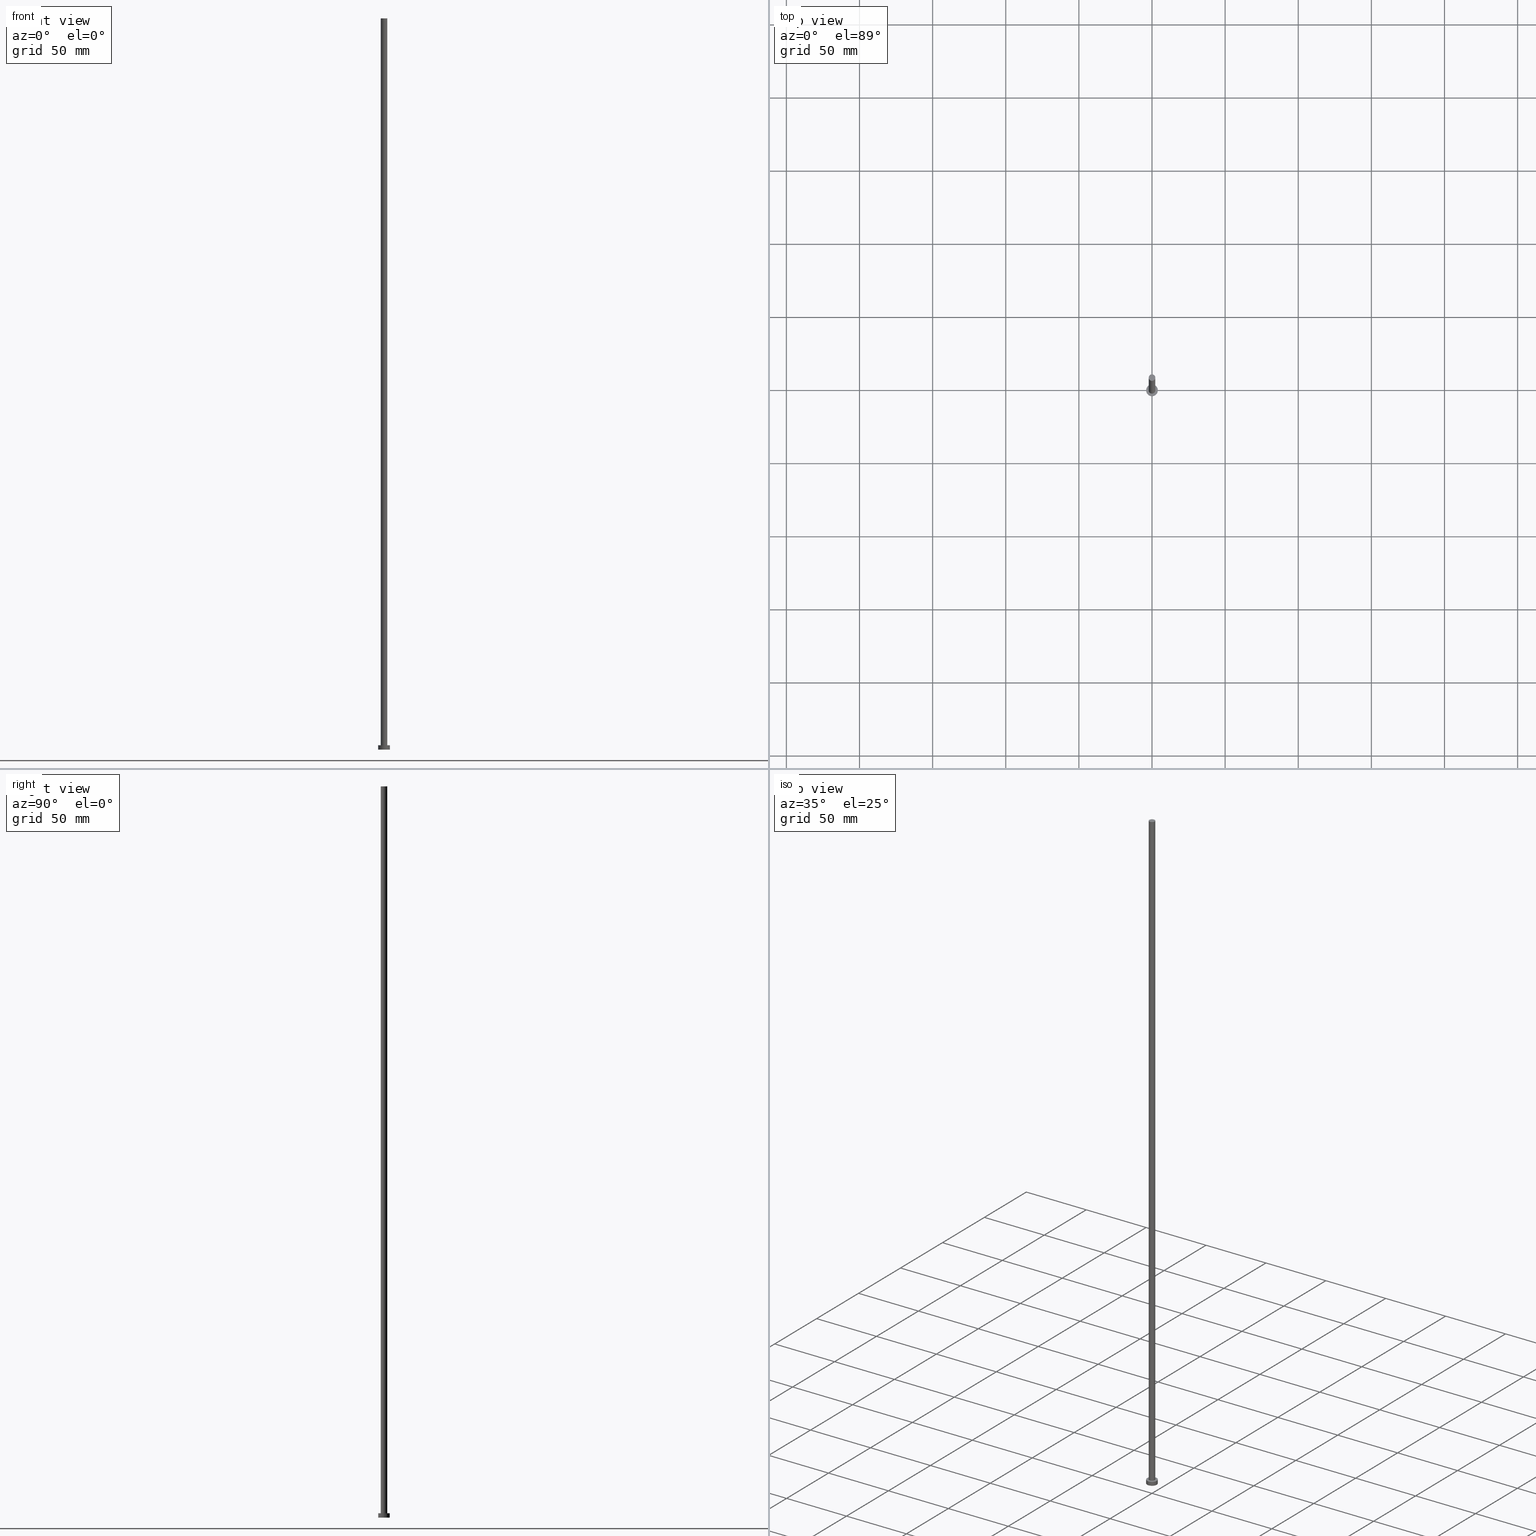
[diagram: canonical four-view strip — front | top / right | iso, engineering-drawing reading convention]
A machine part, canonical four-view strip (front | top / right | iso — engineering-drawing reading convention). The complete STEP part file that produces these views, byte-faithful:
ISO-10303-21;
HEADER;
FILE_DESCRIPTION (( 'STEP AP203' ),
    '1' );
FILE_NAME ('5251.STEP',
    '2023-02-12T11:52:20',
    ( '' ),
    ( '' ),
    'SwSTEP 2.0',
    'SolidWorks 2019',
    '' );
FILE_SCHEMA (( 'CONFIG_CONTROL_DESIGN' ));
ENDSEC;

DATA;
#1 = CARTESIAN_POINT ( 'NONE',  ( 0.000000000000000000, 0.000000000000000000, 3.000000000000000000 ) ) ;
#2 = ORIENTED_EDGE ( 'NONE', *, *, #45, .T. ) ;
#3 = ADVANCED_FACE ( 'NONE', ( #69, #70 ), #147, .T. ) ;
#4 = MECHANICAL_CONTEXT ( 'NONE', #82, 'mechanical' ) ;
#5 = LINE ( 'NONE', #236, #226 ) ;
#6 = CC_DESIGN_PERSON_AND_ORGANIZATION_ASSIGNMENT ( #89, #107, ( #231 ) ) ;
#7 = ORIENTED_EDGE ( 'NONE', *, *, #157, .F. ) ;
#8 = CARTESIAN_POINT ( 'NONE',  ( 0.000000000000000000, 0.000000000000000000, 500.0000000000000000 ) ) ;
#9 = VERTEX_POINT ( 'NONE', #183 ) ;
#10 = CC_DESIGN_SECURITY_CLASSIFICATION ( #229, ( #164 ) ) ;
#11 = DATE_AND_TIME ( #85, #214 ) ;
#12 = APPROVAL_ROLE ( '' ) ;
#13 = CC_DESIGN_PERSON_AND_ORGANIZATION_ASSIGNMENT ( #103, #203, ( #164 ) ) ;
#14 = AXIS2_PLACEMENT_3D ( 'NONE', #192, #63, #22 ) ;
#15 = CARTESIAN_POINT ( 'NONE',  ( 0.000000000000000000, 0.000000000000000000, 0.000000000000000000 ) ) ;
#16 = AXIS2_PLACEMENT_3D ( 'NONE', #230, #93, #35 ) ;
#17 = FACE_OUTER_BOUND ( 'NONE', #193, .T. ) ;
#18 = AXIS2_PLACEMENT_3D ( 'NONE', #158, #199, #46 ) ;
#19 = LINE ( 'NONE', #171, #149 ) ;
#20 = ORIENTED_EDGE ( 'NONE', *, *, #116, .T. ) ;
#21 = EDGE_CURVE ( 'NONE', #9, #123, #114, .T. ) ;
#22 = DIRECTION ( 'NONE',  ( 1.000000000000000000, 0.000000000000000000, -0.000000000000000000 ) ) ;
#23 = ORIENTED_EDGE ( 'NONE', *, *, #169, .F. ) ;
#24 = APPROVAL_PERSON_ORGANIZATION ( #118, #120, #215 ) ;
#25 = CARTESIAN_POINT ( 'NONE',  ( 0.000000000000000000, 0.000000000000000000, 3.000000000000000000 ) ) ;
#26 = APPROVAL_DATE_TIME ( #245, #185 ) ;
#27 = COORDINATED_UNIVERSAL_TIME_OFFSET ( 1, 0, .AHEAD. ) ;
#28 = CIRCLE ( 'NONE', #210, 2.250000000000000000 ) ;
#29 = DATE_AND_TIME ( #247, #221 ) ;
#30 = ADVANCED_FACE ( 'NONE', ( #36 ), #133, .T. ) ;
#31 = CALENDAR_DATE ( 2023, 12, 2 ) ;
#32 = CARTESIAN_POINT ( 'NONE',  ( 4.000000000000000000, 4.898587196589412829E-16, 0.000000000000000000 ) ) ;
#33 = CARTESIAN_POINT ( 'NONE',  ( 0.000000000000000000, 0.000000000000000000, 0.000000000000000000 ) ) ;
#34 = CARTESIAN_POINT ( 'NONE',  ( 0.000000000000000000, 0.000000000000000000, 3.000000000000000000 ) ) ;
#35 = DIRECTION ( 'NONE',  ( 1.000000000000000000, 0.000000000000000000, 0.000000000000000000 ) ) ;
#36 = FACE_OUTER_BOUND ( 'NONE', #84, .T. ) ;
#37 = VERTEX_POINT ( 'NONE', #56 ) ;
#38 = PERSON_AND_ORGANIZATION_ROLE ( 'design_owner' ) ;
#39 = ADVANCED_FACE ( 'NONE', ( #112 ), #173, .T. ) ;
#40 = COORDINATED_UNIVERSAL_TIME_OFFSET ( 1, 0, .AHEAD. ) ;
#41 = ORIENTED_EDGE ( 'NONE', *, *, #104, .T. ) ;
#42 = ORIENTED_EDGE ( 'NONE', *, *, #21, .T. ) ;
#43 = DIRECTION ( 'NONE',  ( 0.000000000000000000, 0.000000000000000000, 1.000000000000000000 ) ) ;
#44 = LOCAL_TIME ( 12, 52, 20.00000000000000000, #27 ) ;
#45 = EDGE_CURVE ( 'NONE', #64, #37, #19, .T. ) ;
#46 = DIRECTION ( 'NONE',  ( 1.000000000000000000, 0.000000000000000000, 0.000000000000000000 ) ) ;
#47 = EDGE_LOOP ( 'NONE', ( #241, #20, #96, #156 ) ) ;
#48 = PERSON_AND_ORGANIZATION ( #68, #110 ) ;
#49 = SHAPE_DEFINITION_REPRESENTATION ( #162, #66 ) ;
#50 = CC_DESIGN_PERSON_AND_ORGANIZATION_ASSIGNMENT ( #137, #38, ( #197 ) ) ;
#51 = CALENDAR_DATE ( 2023, 12, 2 ) ;
#52 = CIRCLE ( 'NONE', #188, 2.250000000000000000 ) ;
#53 = PERSON_AND_ORGANIZATION ( #68, #110 ) ;
#54 = LOCAL_TIME ( 12, 52, 20.00000000000000000, #109 ) ;
#55 = DIRECTION ( 'NONE',  ( 0.000000000000000000, 0.000000000000000000, 1.000000000000000000 ) ) ;
#56 = CARTESIAN_POINT ( 'NONE',  ( -4.000000000000000000, 0.000000000000000000, 0.000000000000000000 ) ) ;
#57 = ORIENTED_EDGE ( 'NONE', *, *, #131, .F. ) ;
#58 = MANIFOLD_SOLID_BREP ( 'P�idat vysunut�m3', #77 ) ;
#59 = ADVANCED_FACE ( 'NONE', ( #17 ), #74, .F. ) ;
#60 = AXIS2_PLACEMENT_3D ( 'NONE', #160, #43, #102 ) ;
#61 = DIRECTION ( 'NONE',  ( 0.000000000000000000, 0.000000000000000000, 1.000000000000000000 ) ) ;
#62 =( GEOMETRIC_REPRESENTATION_CONTEXT ( 3 ) GLOBAL_UNCERTAINTY_ASSIGNED_CONTEXT ( ( #165 ) ) GLOBAL_UNIT_ASSIGNED_CONTEXT ( ( #239, #65, #243 ) ) REPRESENTATION_CONTEXT ( 'NONE', 'WORKASPACE' ) );
#63 = DIRECTION ( 'NONE',  ( 0.000000000000000000, 0.000000000000000000, 1.000000000000000000 ) ) ;
#64 = VERTEX_POINT ( 'NONE', #75 ) ;
#65 =( NAMED_UNIT ( * ) PLANE_ANGLE_UNIT ( ) SI_UNIT ( $, .RADIAN. ) );
#66 = ADVANCED_BREP_SHAPE_REPRESENTATION ( '5251', ( #58, #153 ), #62 ) ;
#67 = PERSON_AND_ORGANIZATION ( #68, #110 ) ;
#68 = PERSON ( 'NEUR�EN�', 'NEUR�EN�', 'NEUR�EN�', ('NEUR�EN�'), ('NEUR�EN�'), ('NEUR�EN�') ) ;
#69 = FACE_BOUND ( 'NONE', #155, .T. ) ;
#70 = FACE_OUTER_BOUND ( 'NONE', #198, .T. ) ;
#71 = EDGE_CURVE ( 'NONE', #37, #81, #249, .T. ) ;
#72 = VECTOR ( 'NONE', #115, 1000.000000000000000 ) ;
#73 = LINE ( 'NONE', #232, #184 ) ;
#74 = PLANE ( 'NONE',  #163 ) ;
#75 = CARTESIAN_POINT ( 'NONE',  ( -4.000000000000000000, 0.000000000000000000, 3.000000000000000000 ) ) ;
#76 = PRODUCT_RELATED_PRODUCT_CATEGORY ( 'detail', '', ( #197 ) ) ;
#77 = CLOSED_SHELL ( 'NONE', ( #39, #189, #140, #3, #59, #30, #251 ) ) ;
#78 = CARTESIAN_POINT ( 'NONE',  ( 0.000000000000000000, 0.000000000000000000, 500.0000000000000000 ) ) ;
#79 = AXIS2_PLACEMENT_3D ( 'NONE', #100, #121, #213 ) ;
#80 = CARTESIAN_POINT ( 'NONE',  ( 0.000000000000000000, 0.000000000000000000, 3.000000000000000000 ) ) ;
#81 = VERTEX_POINT ( 'NONE', #32 ) ;
#82 = APPLICATION_CONTEXT ( 'configuration controlled 3d designs of mechanical parts and assemblies' ) ;
#83 = CYLINDRICAL_SURFACE ( 'NONE', #79, 4.000000000000000000 ) ;
#84 = EDGE_LOOP ( 'NONE', ( #182, #23, #212, #42 ) ) ;
#85 = CALENDAR_DATE ( 2023, 12, 2 ) ;
#86 = FACE_OUTER_BOUND ( 'NONE', #223, .T. ) ;
#87 = CIRCLE ( 'NONE', #255, 4.000000000000000000 ) ;
#88 = APPROVAL_ROLE ( '' ) ;
#89 = PERSON_AND_ORGANIZATION ( #68, #110 ) ;
#90 = LOCAL_TIME ( 12, 52, 20.00000000000000000, #227 ) ;
#91 = CYLINDRICAL_SURFACE ( 'NONE', #98, 4.000000000000000000 ) ;
#92 = EDGE_CURVE ( 'NONE', #123, #9, #52, .T. ) ;
#93 = DIRECTION ( 'NONE',  ( 0.000000000000000000, 0.000000000000000000, 1.000000000000000000 ) ) ;
#94 = DIRECTION ( 'NONE',  ( -0.000000000000000000, -0.000000000000000000, -1.000000000000000000 ) ) ;
#95 = EDGE_CURVE ( 'NONE', #218, #81, #73, .T. ) ;
#96 = ORIENTED_EDGE ( 'NONE', *, *, #92, .T. ) ;
#97 = APPLICATION_PROTOCOL_DEFINITION ( 'international standard', 'config_control_design', 1994, #201 ) ;
#98 = AXIS2_PLACEMENT_3D ( 'NONE', #25, #176, #142 ) ;
#99 = APPROVAL ( #181, 'NEUR�EN�' ) ;
#100 = CARTESIAN_POINT ( 'NONE',  ( 0.000000000000000000, 0.000000000000000000, 3.000000000000000000 ) ) ;
#101 = VERTEX_POINT ( 'NONE', #154 ) ;
#102 = DIRECTION ( 'NONE',  ( 1.000000000000000000, 0.000000000000000000, 0.000000000000000000 ) ) ;
#103 = PERSON_AND_ORGANIZATION ( #68, #110 ) ;
#104 = EDGE_CURVE ( 'NONE', #218, #64, #87, .T. ) ;
#105 = DATE_TIME_ROLE ( 'creation_date' ) ;
#106 = CIRCLE ( 'NONE', #18, 2.250000000000000000 ) ;
#107 = PERSON_AND_ORGANIZATION_ROLE ( 'creator' ) ;
#108 = AXIS2_PLACEMENT_3D ( 'NONE', #254, #252, #187 ) ;
#109 = COORDINATED_UNIVERSAL_TIME_OFFSET ( 1, 0, .AHEAD. ) ;
#110 = ORGANIZATION ( 'NEUR�EN�', 'NEUR�EN�', '' ) ;
#111 = FACE_OUTER_BOUND ( 'NONE', #159, .T. ) ;
#112 = FACE_OUTER_BOUND ( 'NONE', #47, .T. ) ;
#113 = DIRECTION ( 'NONE',  ( 0.000000000000000000, 0.000000000000000000, 1.000000000000000000 ) ) ;
#114 = CIRCLE ( 'NONE', #16, 2.250000000000000000 ) ;
#115 = DIRECTION ( 'NONE',  ( -0.000000000000000000, -0.000000000000000000, -1.000000000000000000 ) ) ;
#116 = EDGE_CURVE ( 'NONE', #237, #123, #186, .T. ) ;
#117 = CC_DESIGN_APPROVAL ( #185, ( #164 ) ) ;
#118 = PERSON_AND_ORGANIZATION ( #68, #110 ) ;
#119 = ORIENTED_EDGE ( 'NONE', *, *, #45, .F. ) ;
#120 = APPROVAL ( #191, 'NEUR�EN�' ) ;
#121 = DIRECTION ( 'NONE',  ( -0.000000000000000000, -0.000000000000000000, -1.000000000000000000 ) ) ;
#122 = DIRECTION ( 'NONE',  ( 1.000000000000000000, 0.000000000000000000, 0.000000000000000000 ) ) ;
#123 = VERTEX_POINT ( 'NONE', #150 ) ;
#124 = AXIS2_PLACEMENT_3D ( 'NONE', #33, #61, #135 ) ;
#125 = ORIENTED_EDGE ( 'NONE', *, *, #104, .F. ) ;
#126 = APPROVAL_DATE_TIME ( #11, #120 ) ;
#127 = CC_DESIGN_DATE_AND_TIME_ASSIGNMENT ( #148, #224, ( #229 ) ) ;
#128 = APPROVAL_STATUS ( 'not_yet_approved' ) ;
#129 = CC_DESIGN_APPROVAL ( #99, ( #229 ) ) ;
#130 = DIRECTION ( 'NONE',  ( 0.000000000000000000, 0.000000000000000000, 1.000000000000000000 ) ) ;
#131 = EDGE_CURVE ( 'NONE', #81, #37, #144, .T. ) ;
#132 = AXIS2_PLACEMENT_3D ( 'NONE', #78, #253, #151 ) ;
#133 = CYLINDRICAL_SURFACE ( 'NONE', #108, 2.250000000000000000 ) ;
#134 = APPROVAL_PERSON_ORGANIZATION ( #166, #99, #12 ) ;
#135 = DIRECTION ( 'NONE',  ( 1.000000000000000000, 0.000000000000000000, 0.000000000000000000 ) ) ;
#136 = DIRECTION ( 'NONE',  ( 1.000000000000000000, 0.000000000000000000, -0.000000000000000000 ) ) ;
#137 = PERSON_AND_ORGANIZATION ( #68, #110 ) ;
#138 = ORIENTED_EDGE ( 'NONE', *, *, #71, .T. ) ;
#139 = DIRECTION ( 'NONE',  ( 0.000000000000000000, 0.000000000000000000, 1.000000000000000000 ) ) ;
#140 = ADVANCED_FACE ( 'NONE', ( #111 ), #91, .T. ) ;
#141 = ORIENTED_EDGE ( 'NONE', *, *, #225, .T. ) ;
#142 = DIRECTION ( 'NONE',  ( -1.000000000000000000, 0.000000000000000000, 0.000000000000000000 ) ) ;
#143 = PERSON_AND_ORGANIZATION_ROLE ( 'classification_officer' ) ;
#144 = CIRCLE ( 'NONE', #206, 4.000000000000000000 ) ;
#145 = CALENDAR_DATE ( 2023, 12, 2 ) ;
#146 = CC_DESIGN_PERSON_AND_ORGANIZATION_ASSIGNMENT ( #53, #143, ( #229 ) ) ;
#147 = PLANE ( 'NONE',  #219 ) ;
#148 = DATE_AND_TIME ( #51, #44 ) ;
#149 = VECTOR ( 'NONE', #94, 1000.000000000000000 ) ;
#150 = CARTESIAN_POINT ( 'NONE',  ( 2.250000000000000000, 2.755455298081543792E-16, 3.000000000000000000 ) ) ;
#151 = DIRECTION ( 'NONE',  ( -1.000000000000000000, 0.000000000000000000, 0.000000000000000000 ) ) ;
#152 = DIRECTION ( 'NONE',  ( 0.000000000000000000, 0.000000000000000000, 1.000000000000000000 ) ) ;
#153 = AXIS2_PLACEMENT_3D ( 'NONE', #222, #139, #122 ) ;
#154 = CARTESIAN_POINT ( 'NONE',  ( -2.250000000000000000, 0.000000000000000000, 500.0000000000000000 ) ) ;
#155 = EDGE_LOOP ( 'NONE', ( #168, #175 ) ) ;
#156 = ORIENTED_EDGE ( 'NONE', *, *, #240, .F. ) ;
#157 = EDGE_CURVE ( 'NONE', #64, #218, #208, .T. ) ;
#158 = CARTESIAN_POINT ( 'NONE',  ( 0.000000000000000000, 0.000000000000000000, 500.0000000000000000 ) ) ;
#159 = EDGE_LOOP ( 'NONE', ( #216, #7, #2, #138 ) ) ;
#160 = CARTESIAN_POINT ( 'NONE',  ( 0.000000000000000000, 0.000000000000000000, 3.000000000000000000 ) ) ;
#161 = ORIENTED_EDGE ( 'NONE', *, *, #95, .T. ) ;
#162 = PRODUCT_DEFINITION_SHAPE ( 'NONE', 'NONE',  #231 ) ;
#163 = AXIS2_PLACEMENT_3D ( 'NONE', #205, #233, #136 ) ;
#164 = PRODUCT_DEFINITION_FORMATION_WITH_SPECIFIED_SOURCE ( 'LIBOVOLN�', '', #197, .NOT_KNOWN. ) ;
#165 = UNCERTAINTY_MEASURE_WITH_UNIT (LENGTH_MEASURE( 1.000000000000000082E-05 ), #239, 'distance_accuracy_value', 'NONE');
#166 = PERSON_AND_ORGANIZATION ( #68, #110 ) ;
#167 = CC_DESIGN_PERSON_AND_ORGANIZATION_ASSIGNMENT ( #67, #228, ( #164 ) ) ;
#168 = ORIENTED_EDGE ( 'NONE', *, *, #21, .F. ) ;
#169 = EDGE_CURVE ( 'NONE', #101, #237, #106, .T. ) ;
#170 = DESIGN_CONTEXT ( 'detailed design', #201, 'design' ) ;
#171 = CARTESIAN_POINT ( 'NONE',  ( -4.000000000000000000, 0.000000000000000000, 3.000000000000000000 ) ) ;
#172 = DIRECTION ( 'NONE',  ( 1.000000000000000000, 0.000000000000000000, -0.000000000000000000 ) ) ;
#173 = CYLINDRICAL_SURFACE ( 'NONE', #132, 2.250000000000000000 ) ;
#174 = APPLICATION_PROTOCOL_DEFINITION ( 'international standard', 'config_control_design', 1994, #82 ) ;
#175 = ORIENTED_EDGE ( 'NONE', *, *, #92, .F. ) ;
#176 = DIRECTION ( 'NONE',  ( -0.000000000000000000, -0.000000000000000000, -1.000000000000000000 ) ) ;
#177 = ORIENTED_EDGE ( 'NONE', *, *, #71, .F. ) ;
#178 = DIRECTION ( 'NONE',  ( -0.000000000000000000, -0.000000000000000000, -1.000000000000000000 ) ) ;
#179 = CARTESIAN_POINT ( 'NONE',  ( 4.000000000000000000, 4.898587196589412829E-16, 3.000000000000000000 ) ) ;
#180 = SECURITY_CLASSIFICATION_LEVEL ( 'unclassified' ) ;
#181 = APPROVAL_STATUS ( 'not_yet_approved' ) ;
#182 = ORIENTED_EDGE ( 'NONE', *, *, #116, .F. ) ;
#183 = CARTESIAN_POINT ( 'NONE',  ( -2.250000000000000000, 0.000000000000000000, 3.000000000000000000 ) ) ;
#184 = VECTOR ( 'NONE', #209, 1000.000000000000000 ) ;
#185 = APPROVAL ( #128, 'NEUR�EN�' ) ;
#186 = LINE ( 'NONE', #234, #72 ) ;
#187 = DIRECTION ( 'NONE',  ( -1.000000000000000000, 0.000000000000000000, 0.000000000000000000 ) ) ;
#188 = AXIS2_PLACEMENT_3D ( 'NONE', #1, #152, #250 ) ;
#189 = ADVANCED_FACE ( 'NONE', ( #86 ), #83, .T. ) ;
#190 = ORIENTED_EDGE ( 'NONE', *, *, #131, .T. ) ;
#191 = APPROVAL_STATUS ( 'not_yet_approved' ) ;
#192 = CARTESIAN_POINT ( 'NONE',  ( 0.000000000000000000, 0.000000000000000000, 500.0000000000000000 ) ) ;
#193 = EDGE_LOOP ( 'NONE', ( #177, #57 ) ) ;
#194 = DIRECTION ( 'NONE',  ( 1.000000000000000000, 0.000000000000000000, 0.000000000000000000 ) ) ;
#195 = ORIENTED_EDGE ( 'NONE', *, *, #157, .T. ) ;
#196 = APPROVAL_PERSON_ORGANIZATION ( #48, #185, #88 ) ;
#197 = PRODUCT ( '5251', '5251', '', ( #4 ) ) ;
#198 = EDGE_LOOP ( 'NONE', ( #195, #41 ) ) ;
#199 = DIRECTION ( 'NONE',  ( 0.000000000000000000, 0.000000000000000000, 1.000000000000000000 ) ) ;
#200 = COORDINATED_UNIVERSAL_TIME_OFFSET ( 1, 0, .AHEAD. ) ;
#201 = APPLICATION_CONTEXT ( 'configuration controlled 3d designs of mechanical parts and assemblies' ) ;
#202 = APPROVAL_DATE_TIME ( #246, #99 ) ;
#203 = PERSON_AND_ORGANIZATION_ROLE ( 'design_supplier' ) ;
#204 = DIRECTION ( 'NONE',  ( 1.000000000000000000, 0.000000000000000000, 0.000000000000000000 ) ) ;
#205 = CARTESIAN_POINT ( 'NONE',  ( 0.000000000000000000, 0.000000000000000000, 0.000000000000000000 ) ) ;
#206 = AXIS2_PLACEMENT_3D ( 'NONE', #15, #130, #204 ) ;
#207 = CC_DESIGN_DATE_AND_TIME_ASSIGNMENT ( #29, #105, ( #231 ) ) ;
#208 = CIRCLE ( 'NONE', #60, 4.000000000000000000 ) ;
#209 = DIRECTION ( 'NONE',  ( -0.000000000000000000, -0.000000000000000000, -1.000000000000000000 ) ) ;
#210 = AXIS2_PLACEMENT_3D ( 'NONE', #8, #217, #194 ) ;
#211 = DIRECTION ( 'NONE',  ( 1.000000000000000000, 0.000000000000000000, 0.000000000000000000 ) ) ;
#212 = ORIENTED_EDGE ( 'NONE', *, *, #240, .T. ) ;
#213 = DIRECTION ( 'NONE',  ( -1.000000000000000000, 0.000000000000000000, 0.000000000000000000 ) ) ;
#214 = LOCAL_TIME ( 12, 52, 20.00000000000000000, #40 ) ;
#215 = APPROVAL_ROLE ( '' ) ;
#216 = ORIENTED_EDGE ( 'NONE', *, *, #95, .F. ) ;
#217 = DIRECTION ( 'NONE',  ( 0.000000000000000000, 0.000000000000000000, 1.000000000000000000 ) ) ;
#218 = VERTEX_POINT ( 'NONE', #179 ) ;
#219 = AXIS2_PLACEMENT_3D ( 'NONE', #80, #55, #172 ) ;
#220 = PLANE ( 'NONE',  #14 ) ;
#221 = LOCAL_TIME ( 12, 52, 20.00000000000000000, #200 ) ;
#222 = CARTESIAN_POINT ( 'NONE',  ( 0.000000000000000000, 0.000000000000000000, 0.000000000000000000 ) ) ;
#223 = EDGE_LOOP ( 'NONE', ( #125, #161, #190, #119 ) ) ;
#224 = DATE_TIME_ROLE ( 'classification_date' ) ;
#225 = EDGE_CURVE ( 'NONE', #237, #101, #28, .T. ) ;
#226 = VECTOR ( 'NONE', #178, 1000.000000000000000 ) ;
#227 = COORDINATED_UNIVERSAL_TIME_OFFSET ( 1, 0, .AHEAD. ) ;
#228 = PERSON_AND_ORGANIZATION_ROLE ( 'creator' ) ;
#229 = SECURITY_CLASSIFICATION ( '', '', #180 ) ;
#230 = CARTESIAN_POINT ( 'NONE',  ( 0.000000000000000000, 0.000000000000000000, 3.000000000000000000 ) ) ;
#231 = PRODUCT_DEFINITION ( 'NEZN�M�', '', #164, #170 ) ;
#232 = CARTESIAN_POINT ( 'NONE',  ( 4.000000000000000000, 4.898587196589412829E-16, 3.000000000000000000 ) ) ;
#233 = DIRECTION ( 'NONE',  ( 0.000000000000000000, 0.000000000000000000, 1.000000000000000000 ) ) ;
#234 = CARTESIAN_POINT ( 'NONE',  ( 2.250000000000000000, 2.755455298081543792E-16, 500.0000000000000000 ) ) ;
#235 = CARTESIAN_POINT ( 'NONE',  ( 2.250000000000000000, 2.755455298081543792E-16, 500.0000000000000000 ) ) ;
#236 = CARTESIAN_POINT ( 'NONE',  ( -2.250000000000000000, 0.000000000000000000, 500.0000000000000000 ) ) ;
#237 = VERTEX_POINT ( 'NONE', #235 ) ;
#238 = CC_DESIGN_APPROVAL ( #120, ( #231 ) ) ;
#239 =( LENGTH_UNIT ( ) NAMED_UNIT ( * ) SI_UNIT ( .MILLI., .METRE. ) );
#240 = EDGE_CURVE ( 'NONE', #101, #9, #5, .T. ) ;
#241 = ORIENTED_EDGE ( 'NONE', *, *, #225, .F. ) ;
#242 = FACE_OUTER_BOUND ( 'NONE', #244, .T. ) ;
#243 =( NAMED_UNIT ( * ) SI_UNIT ( $, .STERADIAN. ) SOLID_ANGLE_UNIT ( ) );
#244 = EDGE_LOOP ( 'NONE', ( #248, #141 ) ) ;
#245 = DATE_AND_TIME ( #145, #90 ) ;
#246 = DATE_AND_TIME ( #31, #54 ) ;
#247 = CALENDAR_DATE ( 2023, 12, 2 ) ;
#248 = ORIENTED_EDGE ( 'NONE', *, *, #169, .T. ) ;
#249 = CIRCLE ( 'NONE', #124, 4.000000000000000000 ) ;
#250 = DIRECTION ( 'NONE',  ( 1.000000000000000000, 0.000000000000000000, 0.000000000000000000 ) ) ;
#251 = ADVANCED_FACE ( 'NONE', ( #242 ), #220, .T. ) ;
#252 = DIRECTION ( 'NONE',  ( -0.000000000000000000, -0.000000000000000000, -1.000000000000000000 ) ) ;
#253 = DIRECTION ( 'NONE',  ( -0.000000000000000000, -0.000000000000000000, -1.000000000000000000 ) ) ;
#254 = CARTESIAN_POINT ( 'NONE',  ( 0.000000000000000000, 0.000000000000000000, 500.0000000000000000 ) ) ;
#255 = AXIS2_PLACEMENT_3D ( 'NONE', #34, #113, #211 ) ;
ENDSEC;
END-ISO-10303-21;
